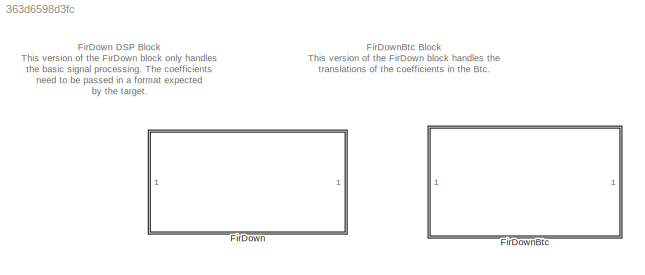
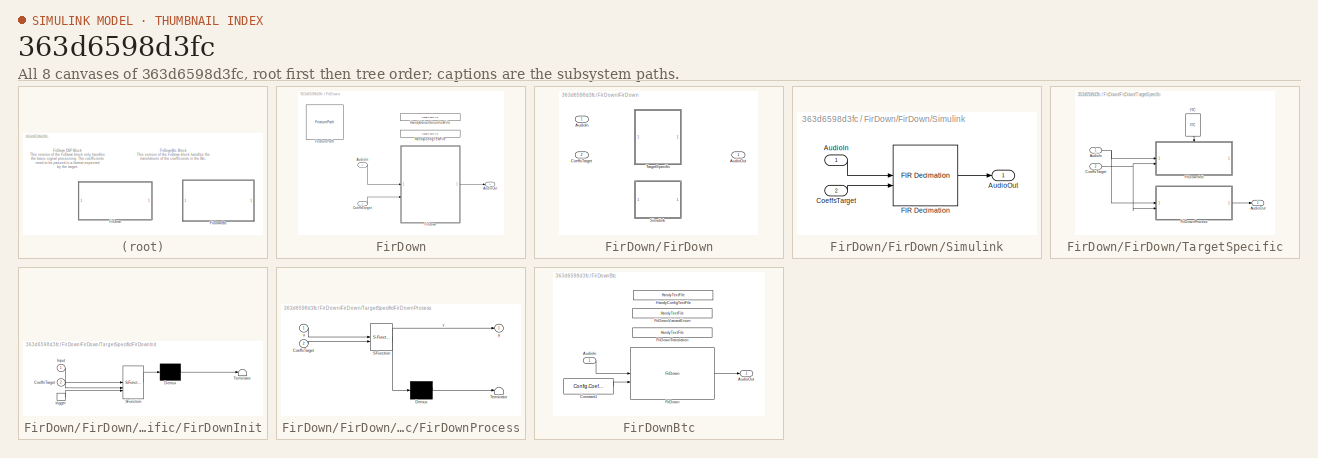
[diagram: thumbnail index - all 8 canvases of the model, root first then tree order]
MODEL slx_363d6598d3fc
KIND library
CONFIG AbsTol = auto
CONFIG EnableMultiTasking = off
CONFIG FixedStep = auto
CONFIG MaxStep = auto
CONFIG MinStep = auto
CONFIG RelTol = 1e-3
CONFIG SampleTimeConstraint = Unconstrained
CONFIG SolverName = VariableStepAuto
CONFIG StartTime = 0.0
CONFIG StopTime = 10.0
BLOCK [SubSystem] FirDown
BLOCK [Inport] FirDown/AudioIn
BLOCK [Outport] FirDown/AudioOut
BLOCK [Inport] FirDown/CoeffsTarget
  Port = 2
BLOCK [Reference] FirDown/FeaturePath  REF=FeaturePath/FeaturePath
  SourceBlock = FeaturePath/FeaturePath
  SourceProductName = Bose Talaria
  SourceType = Talaria Feature Path
BLOCK [SubSystem] FirDown/FirDown
  Variant = on
BLOCK [Inport] FirDown/FirDown/AudioIn
BLOCK [Outport] FirDown/FirDown/AudioOut
BLOCK [Inport] FirDown/FirDown/CoeffsTarget
  Port = 2
BLOCK [SubSystem] FirDown/FirDown/Simulink
  VariantControl = Config.Variant.StartsWith("Simulink")
BLOCK [Inport] FirDown/FirDown/Simulink/AudioIn
BLOCK [Outport] FirDown/FirDown/Simulink/AudioOut
BLOCK [Inport] FirDown/FirDown/Simulink/CoeffsTarget
  Port = 2
BLOCK [Reference] FirDown/FirDown/Simulink/FIR Decimation  REF=dspmlti4/FIR
Decimation
  LibrarySourceBlock = dsphdlsupportfiltering/FIR\nDecimation
  SourceBlock = dspmlti4/FIR\nDecimation
  SourceType = FIR Decimation
  UserDataPersistent = on
BLOCK [SubSystem] FirDown/FirDown/TargetSpecific
  VariantControl = (default)
BLOCK [Inport] FirDown/FirDown/TargetSpecific/AudioIn
BLOCK [Outport] FirDown/FirDown/TargetSpecific/AudioOut
BLOCK [Inport] FirDown/FirDown/TargetSpecific/CoeffsTarget
  Port = 2
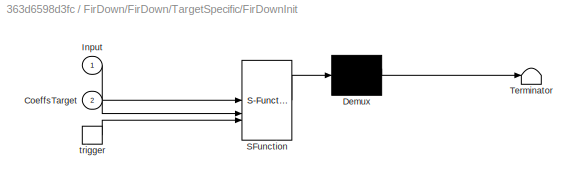
BLOCK [SubSystem] FirDown/FirDown/TargetSpecific/FirDownInit
  ErrorFcn = Stateflow.Translate.translate
  LibrarySourceBlock = simulink/User-Defined\nFunctions/MATLAB Function
  PermitHierarchicalResolution = ExplicitOnly
  SFBlockType = MATLAB Function
  TreatAsAtomicUnit = on
BLOCK [Demux] FirDown/FirDown/TargetSpecific/FirDownInit/ Demux 
  Outputs = 1
BLOCK [S-Function] FirDown/FirDown/TargetSpecific/FirDownInit/ SFunction 
  EnableBusSupport = off
  FunctionName = sf_sfun
  Parameters = DownFactor,VariantUint8
  PortCounts = [3 1]
  SFcnIsStateOwnerBlock = off
  SFunctionDeploymentMode = off
  Tag = Stateflow S-Function 3
BLOCK [Terminator] FirDown/FirDown/TargetSpecific/FirDownInit/ Terminator 
BLOCK [Inport] FirDown/FirDown/TargetSpecific/FirDownInit/CoeffsTarget
  Port = 2
BLOCK [Inport] FirDown/FirDown/TargetSpecific/FirDownInit/Input
BLOCK [TriggerPort] FirDown/FirDown/TargetSpecific/FirDownInit/trigger
  ShowOutputPort = on
  StatesWhenEnabling = held
  TriggerType = function-call
  VariantControl = (inherit)
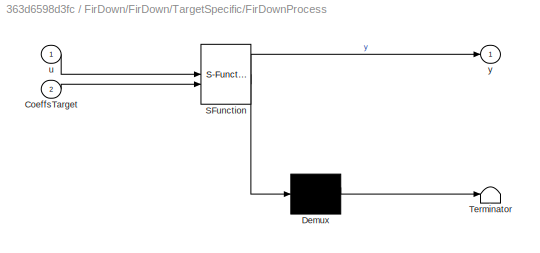
BLOCK [SubSystem] FirDown/FirDown/TargetSpecific/FirDownProcess
  ErrorFcn = Stateflow.Translate.translate
  LibrarySourceBlock = simulink/User-Defined\nFunctions/MATLAB Function
  PermitHierarchicalResolution = ExplicitOnly
  SFBlockType = MATLAB Function
  TreatAsAtomicUnit = on
BLOCK [Demux] FirDown/FirDown/TargetSpecific/FirDownProcess/ Demux 
  Outputs = 1
BLOCK [S-Function] FirDown/FirDown/TargetSpecific/FirDownProcess/ SFunction 
  EnableBusSupport = off
  FunctionName = sf_sfun
  Parameters = UpFactor,VariantUint8
  PortCounts = [2 2]
  SFcnIsStateOwnerBlock = off
  SFunctionDeploymentMode = off
  Tag = Stateflow S-Function 1
BLOCK [Terminator] FirDown/FirDown/TargetSpecific/FirDownProcess/ Terminator 
BLOCK [Inport] FirDown/FirDown/TargetSpecific/FirDownProcess/CoeffsTarget
  Port = 2
BLOCK [Inport] FirDown/FirDown/TargetSpecific/FirDownProcess/u
BLOCK [Outport] FirDown/FirDown/TargetSpecific/FirDownProcess/y
BLOCK [Reference] FirDown/FirDown/TargetSpecific/ITC  REF=ITC/ITC
  NameLocation = right
  SourceBlock = ITC/ITC
  SourceProductName = Bose Talaria
  SourceType = Talaria Initialization Trigger Control
BLOCK [Reference] FirDown/HandyConfigTextFile  REF=HandyTextFile/HandyTextFile
  SourceBlock = HandyTextFile/HandyTextFile
  SourceProductName = Bose Talaria
  SourceType = Talaria Handy Text File
BLOCK [Reference] FirDown/HandyVariantEnumTextFile  REF=HandyTextFile/HandyTextFile
  SourceBlock = HandyTextFile/HandyTextFile
  SourceProductName = Bose Talaria
  SourceType = Talaria Handy Text File
BLOCK [SubSystem] FirDownBtc
BLOCK [Inport] FirDownBtc/AudioIn
BLOCK [Outport] FirDownBtc/AudioOut
BLOCK [Constant] FirDownBtc/Constant1
  Value = Config.CoeffsTarget
BLOCK [Reference] FirDownBtc/FirDown  REF=$bdroot/FirDown
  SourceBlock = $bdroot/FirDown
  SourceType = Blocklib FirDown
BLOCK [Reference] FirDownBtc/FirDownTranslation  REF=HandyTextFile/HandyTextFile
  SourceBlock = HandyTextFile/HandyTextFile
  SourceProductName = Bose Talaria
  SourceType = Talaria Handy Text File
BLOCK [Reference] FirDownBtc/FirDownVariantEnum  REF=HandyTextFile/HandyTextFile
  SourceBlock = HandyTextFile/HandyTextFile
  SourceProductName = Bose Talaria
  SourceType = Talaria Handy Text File
BLOCK [Reference] FirDownBtc/HandyConfigTextFile  REF=HandyTextFile/HandyTextFile
  SourceBlock = HandyTextFile/HandyTextFile
  SourceProductName = Bose Talaria
  SourceType = Talaria Handy Text File
ANNOTATION (root): FirDown DSP Block This version of the FirDown block only handles the basic signal processing. The coefficients need to be passed in a format expected by the target.
ANNOTATION (root): FirDownBtc Block This version of the FirDown block handles the translations of the coefficients in the Btc.
LINE FirDown/AudioIn:1 -> FirDown/FirDown:1
LINE FirDown/CoeffsTarget:1 -> FirDown/FirDown:2
LINE FirDown/FirDown/Simulink/AudioIn:1 -> FirDown/FirDown/Simulink/FIR Decimation:1
LINE FirDown/FirDown/Simulink/CoeffsTarget:1 -> FirDown/FirDown/Simulink/FIR Decimation:2
LINE FirDown/FirDown/Simulink/FIR Decimation:1 -> FirDown/FirDown/Simulink/AudioOut:1
NET FirDown/FirDown/TargetSpecific/AudioIn:1 -> FirDown/FirDown/TargetSpecific/FirDownInit:1, FirDown/FirDown/TargetSpecific/FirDownProcess:1
NET FirDown/FirDown/TargetSpecific/CoeffsTarget:1 -> FirDown/FirDown/TargetSpecific/FirDownInit:2, FirDown/FirDown/TargetSpecific/FirDownProcess:2
LINE FirDown/FirDown/TargetSpecific/FirDownProcess:1 -> FirDown/FirDown/TargetSpecific/AudioOut:1
LINE FirDown/FirDown/TargetSpecific/ITC:1 -> FirDown/FirDown/TargetSpecific/FirDownInit:trigger
LINE FirDown/FirDown:1 -> FirDown/AudioOut:1
LINE FirDownBtc/AudioIn:1 -> FirDownBtc/FirDown:1
LINE FirDownBtc/Constant1:1 -> FirDownBtc/FirDown:2
LINE FirDownBtc/FirDown:1 -> FirDownBtc/AudioOut:1
note: NET lines group one-source signal fan-out (src -> all destinations, sorted); 1:1 wires keep LINE
CHART FirDown/FirDown/TargetSpecific/FirDownProcess states=1 transitions=1
  STATE_LABEL 'eML_blk_kernel()'
  STATE_LABEL 'SCRIPT:\nfunction y = FirDownProcess(u, UpFactor, VariantUint8, CoeffsTarget)\n% TO DO\n\ny = u;\nend\n\n\n'
CHART FirDown/FirDown/TargetSpecific/FirDownInit states=1 transitions=1
  STATE_LABEL 'eML_blk_kernel()'
  STATE_LABEL 'SCRIPT:\nfunction FirDownInit(Input, DownFactor, VariantUint8, CoeffsTarget)\n% TODO\ny = u;\nend'
CHART  states=0 transitions=0
CHART  states=0 transitions=0
